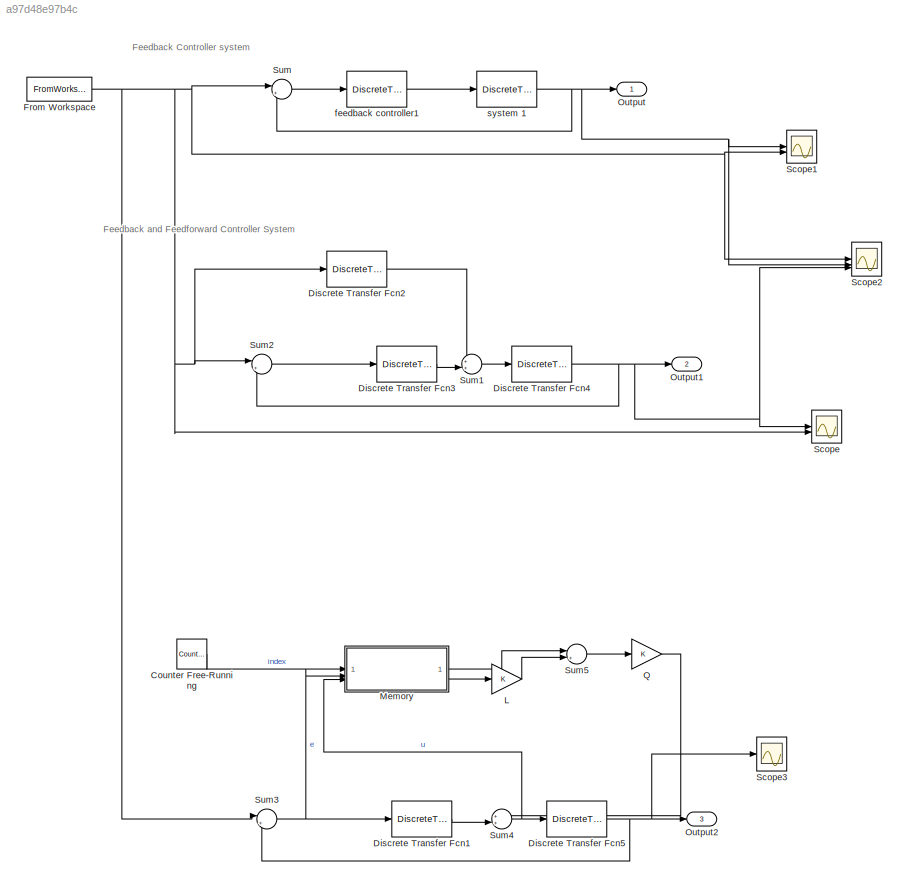
MODEL slx_a97d48e97b4c
KIND model
CONFIG AbsTol = auto
CONFIG EnableMultiTasking = off
CONFIG FixedStep = auto
CONFIG MaxStep = auto
CONFIG MinStep = auto
CONFIG RelTol = 1e-3
CONFIG SampleTimeConstraint = Unconstrained
CONFIG SolverName = VariableStepAuto
CONFIG StartTime = 0.0
CONFIG StopTime = 2.002
BLOCK [Reference] Counter Free-Running  REF=simulink/Sources/Counter
Free-Running
  SourceBlock = simulink/Sources/Counter\nFree-Running
  SourceType = Counter Free-Running
BLOCK [DiscreteTransferFcn] Discrete Transfer Fcn1
  Denominator = feedback_den
  InputPortMap = u0
  Numerator = feedback_num
BLOCK [DiscreteTransferFcn] Discrete Transfer Fcn2
  Denominator = fforward_den
  InputPortMap = u0
  Numerator = fforward_num
BLOCK [DiscreteTransferFcn] Discrete Transfer Fcn3
  Denominator = feedback_den
  InputPortMap = u0
  Numerator = feedback_num
BLOCK [DiscreteTransferFcn] Discrete Transfer Fcn4
  Denominator = plant_den
  InputPortMap = u0
  Numerator = plant_num
BLOCK [DiscreteTransferFcn] Discrete Transfer Fcn5
  Denominator = plant_den
  InputPortMap = u0
  Numerator = plant_num
BLOCK [FromWorkspace] From Workspace
  VariableName = Rj
BLOCK [Gain] L
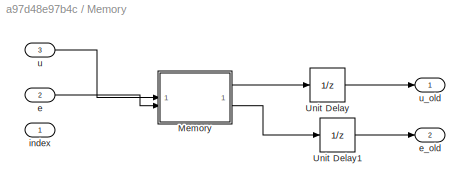
BLOCK [SubSystem] Memory
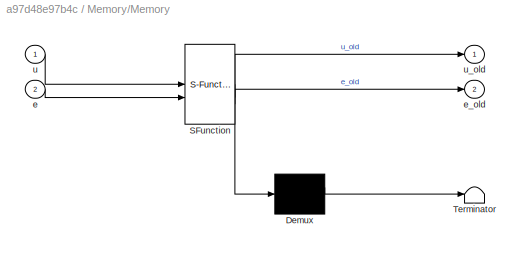
BLOCK [SubSystem] Memory/Memory
  ErrorFcn = Stateflow.Translate.translate
  PermitHierarchicalResolution = ExplicitOnly
  SFBlockType = MATLAB Function
  TreatAsAtomicUnit = on
BLOCK [Demux] Memory/Memory/ Demux 
  Outputs = 1
BLOCK [S-Function] Memory/Memory/ SFunction 
  EnableBusSupport = on
  FunctionName = sf_sfun
  PortCounts = [2 3]
  SFcnIsStateOwnerBlock = off
  SFunctionDeploymentMode = off
  Tag = Stateflow S-Function 1
BLOCK [Terminator] Memory/Memory/ Terminator 
BLOCK [Inport] Memory/Memory/e
  Port = 2
BLOCK [Outport] Memory/Memory/e_old
  Port = 2
BLOCK [Inport] Memory/Memory/u
BLOCK [Outport] Memory/Memory/u_old
BLOCK [UnitDelay] Memory/Unit Delay
  HasFrameUpgradeWarning = on
  SampleTime = 1.001
BLOCK [UnitDelay] Memory/Unit Delay1
  HasFrameUpgradeWarning = on
  SampleTime = 1.001
BLOCK [Inport] Memory/e
  Port = 2
BLOCK [Outport] Memory/e_old
  Port = 2
BLOCK [Inport] Memory/index
BLOCK [Inport] Memory/u
  Port = 3
BLOCK [Outport] Memory/u_old
BLOCK [Outport] Output
BLOCK [Outport] Output1
  Port = 2
BLOCK [Outport] Output2
  Port = 3
BLOCK [Gain] Q
BLOCK [Scope] Scope
  Floating = off
  NumInputPorts = 2
  ScopeSpecificationString = Simulink.scopes.TimeScopeBlockCfg('CurrentConfiguration', extmgr.ConfigurationSet(extmgr.Configuration('Core','General UI',true),extmgr.Configuration('Core','Source UI',true),extmgr.Configuration('Sources','WiredSimulink',true),extmgr.Configuration('Visuals','Time Domain',true,'SerializedDisplays',{struct('MinYLimReal','-1.00000','MaxYLimReal','1.00000','YLabelReal','','MinYLimMag','0.00000','MaxY...<+1349ch>
BLOCK [Scope] Scope1
  Floating = off
  NumInputPorts = 2
  ScopeSpecificationString = Simulink.scopes.TimeScopeBlockCfg('CurrentConfiguration', extmgr.ConfigurationSet(extmgr.Configuration('Core','General UI',true),extmgr.Configuration('Core','Source UI',true),extmgr.Configuration('Sources','WiredSimulink',true,'DataLoggingVariableName','ScopeData1'),extmgr.Configuration('Visuals','Time Domain',true,'SerializedDisplays',{struct('MinYLimReal','-1.00000','MaxYLimReal','1.00000','YLab...<+1374ch>
BLOCK [Scope] Scope2
  Floating = off
  NumInputPorts = 3
  ScopeSpecificationString = Simulink.scopes.TimeScopeBlockCfg('CurrentConfiguration', extmgr.ConfigurationSet(extmgr.Configuration('Core','General UI',true),extmgr.Configuration('Core','Source UI',true),extmgr.Configuration('Sources','WiredSimulink',true,'DataLoggingVariableName','ScopeData2'),extmgr.Configuration('Visuals','Time Domain',true,'SerializedDisplays',{struct('MinYLimReal','-1.00000','MaxYLimReal','1.00000','YLab...<+1399ch>
BLOCK [Scope] Scope3
  Floating = off
  NumInputPorts = 1
  ScopeSpecificationString = Simulink.scopes.TimeScopeBlockCfg('CurrentConfiguration', extmgr.ConfigurationSet(extmgr.Configuration('Core','General UI',true),extmgr.Configuration('Core','Source UI',true),extmgr.Configuration('Sources','WiredSimulink',true,'DataLoggingVariableName','ScopeData3'),extmgr.Configuration('Visuals','Time Domain',true,'SerializedDisplays',{struct('MinYLimReal','-1.00000','MaxYLimReal','1.00000','YLab...<+1359ch>
BLOCK [Sum] Sum
  Inputs = |+-
BLOCK [Sum] Sum1
  Inputs = ++|
BLOCK [Sum] Sum2
  Inputs = |+-
BLOCK [Sum] Sum3
  Inputs = |+-
BLOCK [Sum] Sum4
  Inputs = ++|
BLOCK [Sum] Sum5
  Inputs = |++
BLOCK [DiscreteTransferFcn] feedback controller1
  Denominator = feedback_den
  InputPortMap = u0
  Numerator = feedback_num
BLOCK [DiscreteTransferFcn] system 1
  Denominator = plant_den
  InputPortMap = u0
  Numerator = plant_num
ANNOTATION (root): Feedback Controller system
ANNOTATION (root): Feedback and Feedforward Controller System
LINE Counter Free-Running:1 -> Memory:1
LINE Discrete Transfer Fcn1:1 -> Sum4:2
LINE Discrete Transfer Fcn2:1 -> Sum1:1
LINE Discrete Transfer Fcn3:1 -> Sum1:2
NET Discrete Transfer Fcn4:1 -> Output1:1, Scope2:3, Scope:1, Sum2:2
NET Discrete Transfer Fcn5:1 -> Output2:1, Scope3:1, Sum3:2
NET From Workspace:1 -> Discrete Transfer Fcn2:1, Scope1:2, Scope2:1, Scope:2, Sum2:1, Sum3:1, Sum:1
LINE L:1 -> Sum5:2
LINE Memory/Memory:1 -> Memory/Unit Delay:1
LINE Memory/Memory:2 -> Memory/Unit Delay1:1
LINE Memory/Unit Delay1:1 -> Memory/e_old:1
LINE Memory/Unit Delay:1 -> Memory/u_old:1
LINE Memory/e:1 -> Memory/Memory:2
LINE Memory/u:1 -> Memory/Memory:1
LINE Memory:1 -> Sum5:1
LINE Memory:2 -> L:1
LINE Q:1 -> Sum4:1
LINE Sum1:1 -> Discrete Transfer Fcn4:1
LINE Sum2:1 -> Discrete Transfer Fcn3:1
NET Sum3:1 -> Discrete Transfer Fcn1:1, Memory:2
NET Sum4:1 -> Discrete Transfer Fcn5:1, Memory:3
LINE Sum5:1 -> Q:1
LINE Sum:1 -> feedback controller1:1
LINE feedback controller1:1 -> system 1:1
NET system 1:1 -> Output:1, Scope1:1, Scope2:2, Sum:2
note: NET lines group one-source signal fan-out (src -> all destinations, sorted); 1:1 wires keep LINE
CHART Memory/Memory states=1 transitions=1
  STATE_LABEL 'eML_blk_kernel()'
  STATE_LABEL 'SCRIPT:\nfunction [u_old,e_old]  = fcn(u, e)\n\n\ne_old = e;\nu_old= u;\n\n'
CHART  states=0 transitions=0
